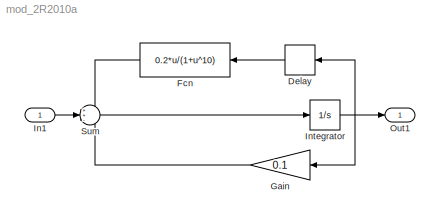
MODEL mod_2R2010a
KIND model
BLOCK [TransportDelay] Delay
  BufferSize = 10240
  Ports = [1, 1]
  SID = 10
BLOCK [Fcn] Fcn
  Expr = 0.2*u/(1+u^10)
  SID = 12
BLOCK [Gain] Gain
  Gain = 0.1
  OutDataTypeMode = Inherit via internal rule
  OutDataTypeStr = Inherit: Inherit via internal rule
  ParamDataTypeStr = Inherit: Inherit via internal rule
  ParameterDataTypeMode = Inherit via internal rule
  SID = 11
  SaturateOnIntegerOverflow = off
BLOCK [Inport] In1
  IconDisplay = Port number
  SID = 2
BLOCK [Integrator] Integrator
  Ports = [1, 1]
  SID = 8
BLOCK [Outport] Out1
  IconDisplay = Port number
  SID = 1
BLOCK [Sum] Sum
  IconShape = round
  InputSameDT = off
  Inputs = ++-
  OutDataTypeMode = Inherit via internal rule
  OutDataTypeStr = Inherit: Inherit via internal rule
  Ports = [3, 1]
  SID = 9
  SaturateOnIntegerOverflow = off
LINE Delay:1 -> Fcn:1
LINE Fcn:1 -> Sum:1
LINE Gain:1 -> Sum:3
LINE In1:1 -> Sum:2
NET Integrator:1 -> Delay:1, Gain:1, Out1:1
LINE Sum:1 -> Integrator:1
note: NET lines group one-source signal fan-out (src -> all destinations, sorted); 1:1 wires keep LINE
